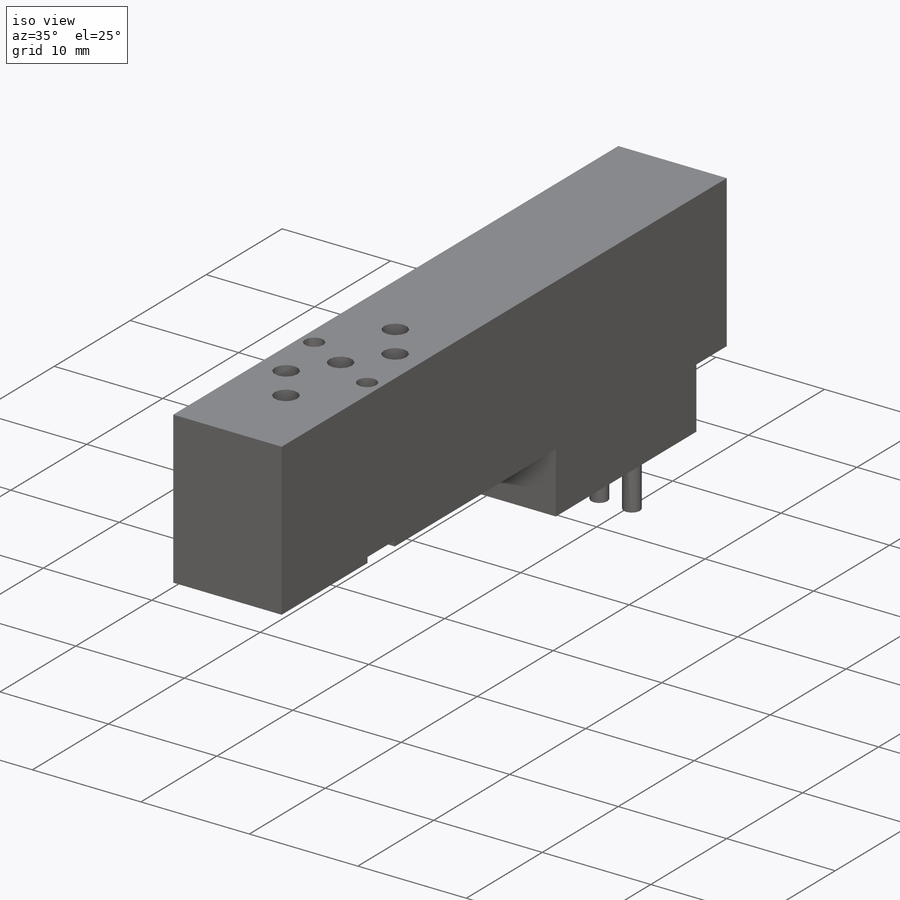
[diagram: iso view]
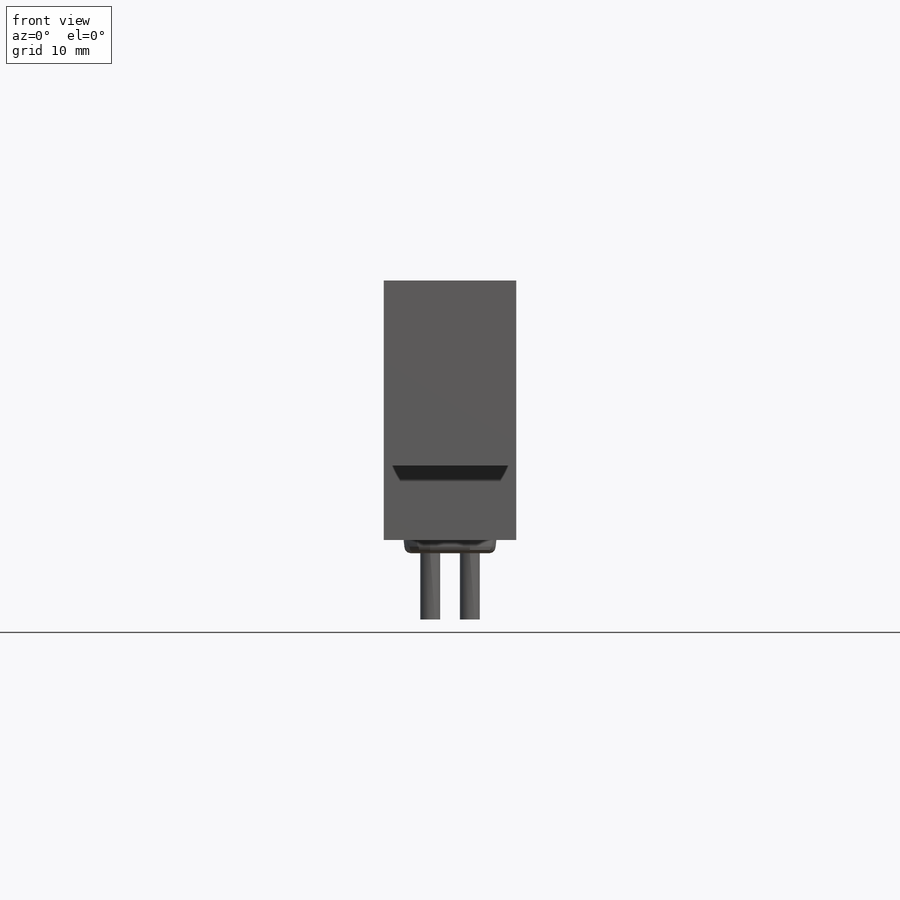
[diagram: front view]
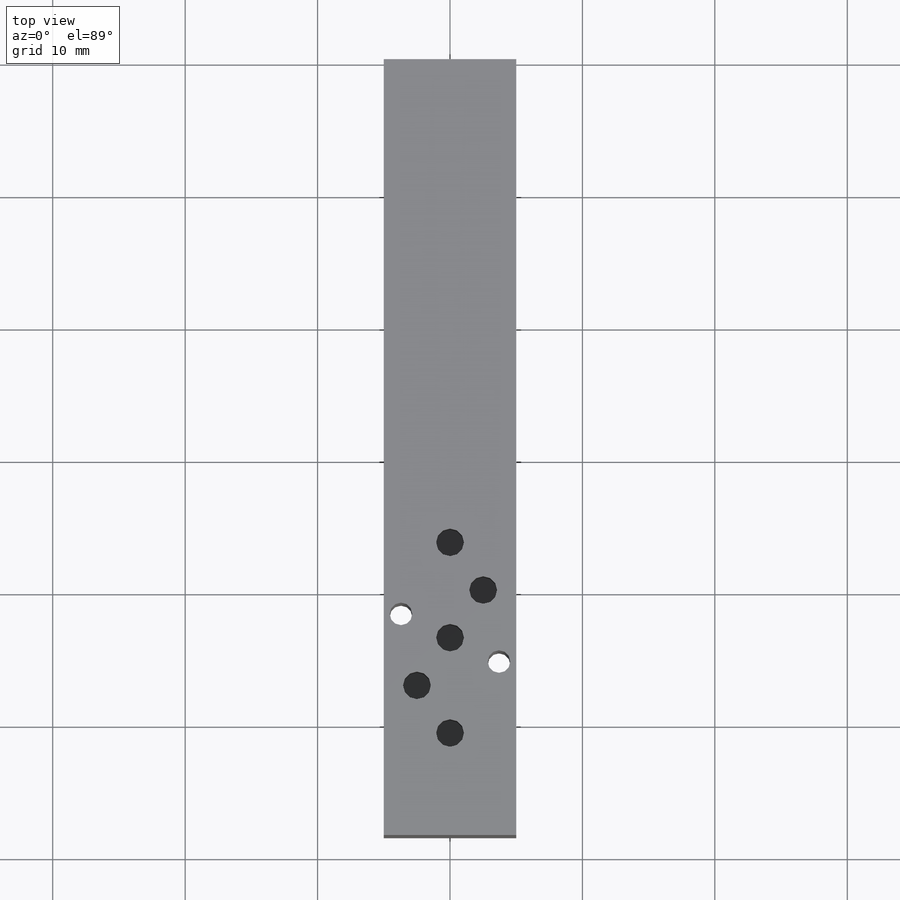
[diagram: top view]
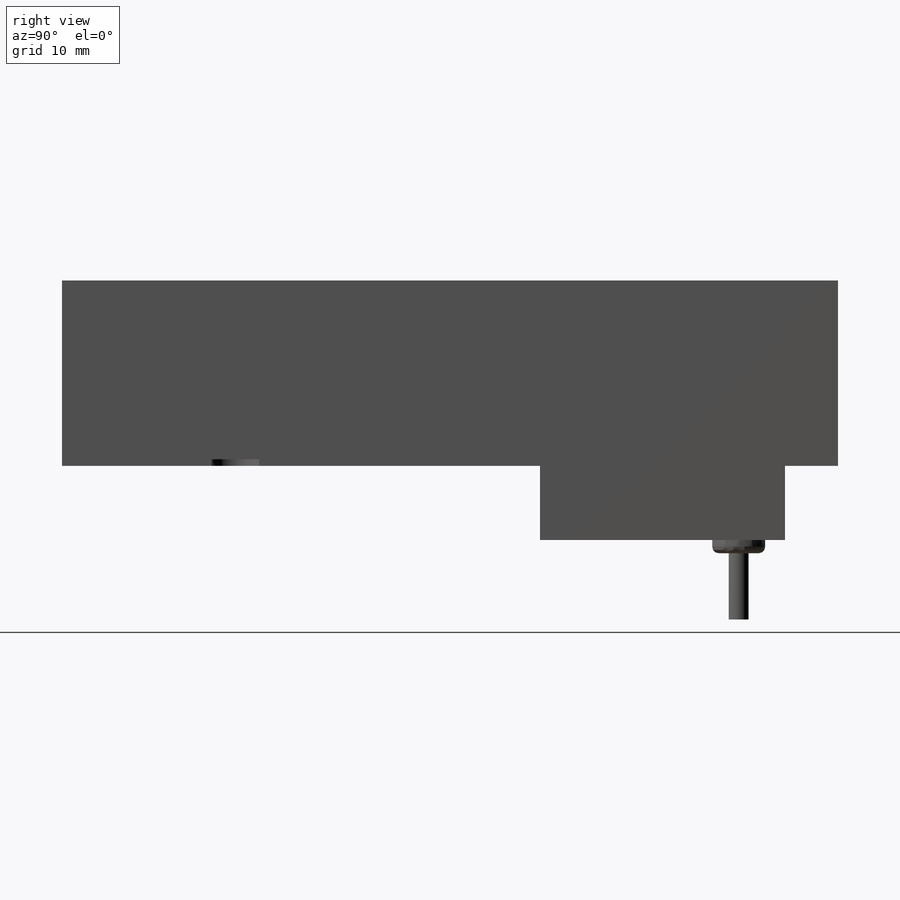
[diagram: right view]
SOLIDWORKS PART (.sldprt)
format: sldprt  version: not decoded by parser v0  size: 381,952 bytes
history: native  units: mm
features: sketch x10, cut_extrude x7, extrude x3, material x1, fillet x1 (+12 scaffold rows collapsed)
feature tree (34):
  scaffold x12  (default folders/planes/origin — collapsed)
  material  "6061-T6"
  sketch  "Sketch1"  dims[D1=58.6mm D2=14.0mm D3=18.5mm D4=19.6mm D5=22.5mm]
  extrude  "Body"  Depth=5mm
  sketch  "Sketch2"  dims[D1=1.7mm D2=3.6mm D3=7.4mm D4=13.1mm]
  cut_extrude  "1.7mm Thru Screw Holes"  [1 undecoded]
  sketch  "Sketch3"  dims[D1=3.6mm]
  cut_extrude  "Screwhead Relief"  Depth=0.5mm
  sketch  "Sketch4"  dims[D1=5.0mm D2=14.9mm]
  cut_extrude  "1 P (port)"  Depth=5mm
  sketch  "Sketch5"  dims[D1=2.5mm D2=3.6mm]
  cut_extrude  "2 B (port)"  [1 undecoded]
  sketch  "Sketch6"
  cut_extrude  "3 R2 (port)"  [1 undecoded]
  sketch  "Sketch7"
  cut_extrude  "4 A (port)"  [1 undecoded]
  sketch  "Sketch8"
  cut_extrude  "5 R1 (port)"  [1 undecoded]
  sketch  "Sketch9"  dims[D1=7.0mm D2=4.0mm D3=1.5mm]
  extrude  "Extrude3"  Depth=1mm
  fillet  "Fillet1"  Radius=0.5mm
  sketch  "Sketch10"  dims[D1=1.5mm]
  extrude  "Wires"  Depth=5mm
decode coverage: 13 of 21 modeling features carry decoded parameters
note: 5 parameter values undecoded
summary: no parameter record found for 5 features
note: suppression state not decoded; provenance and decode notes live in map.json
